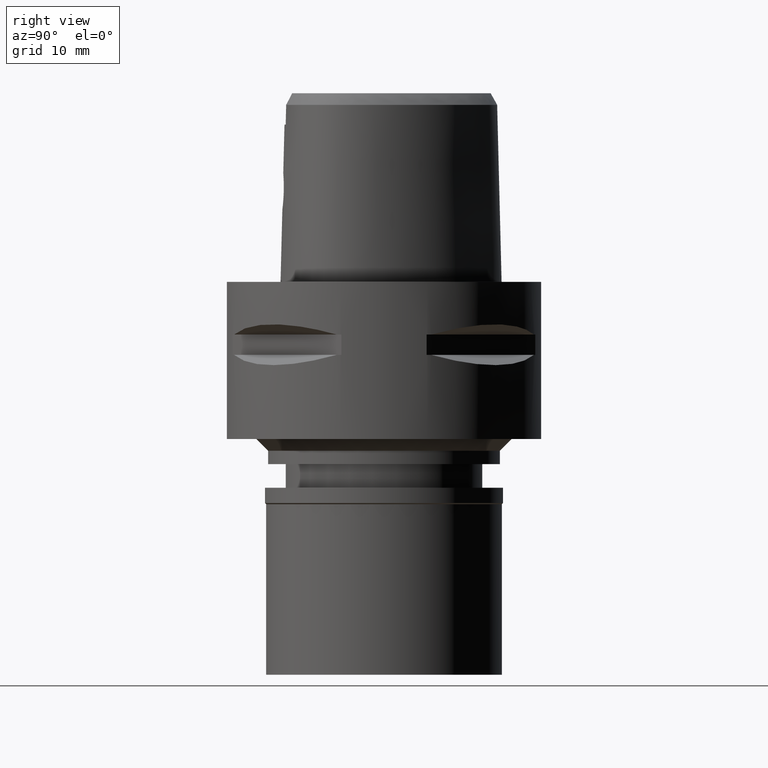
[diagram: clean part render]
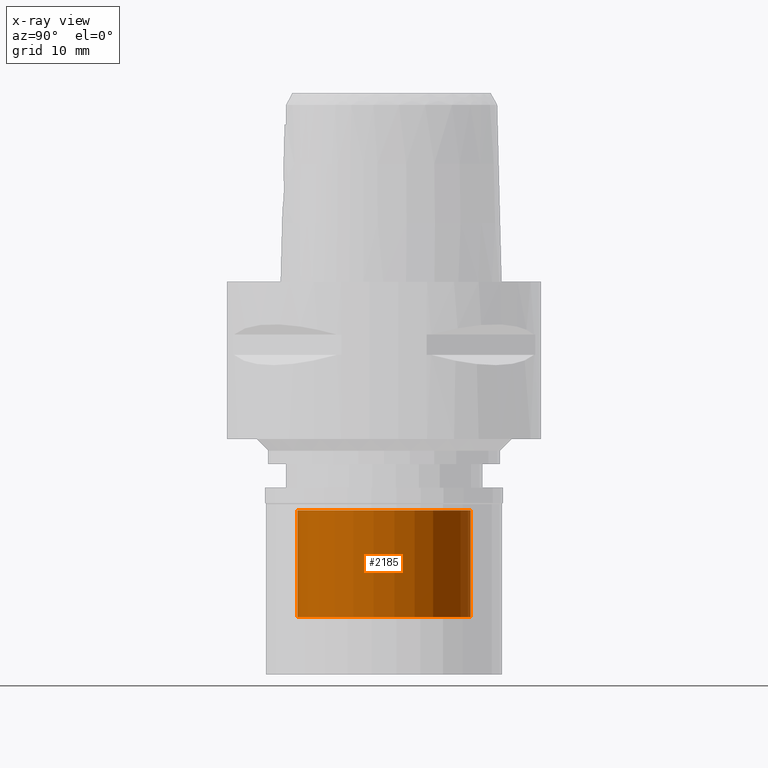
[diagram: x-ray — body ghosted, one internal face saturated and labeled with its STEP entity id]
A machine part, right view, then the same camera in x-ray: the body is ghosted and one INTERNAL B-rep face — a face not visible from any outside direction — is saturated and labeled: STEP entity #2185.
In plain terms, the highlighted cylindrical surface (partial cylindrical patch) has radius 11 mm, axis along (0, 0, -1).
Its self-contained STEP definition (entity closure, byte-faithful):
#47 = DIRECTION ( 'NONE',  ( 0.0000000000000000000, -1.000000000000000000, 0.0000000000000000000 ) ) ;
#89 = DIRECTION ( 'NONE',  ( 0.0000000000000000000, 0.0000000000000000000, 1.000000000000000000 ) ) ;
#99 = EDGE_CURVE ( 'NONE', #2465, #2778, #1657, .T. ) ;
#131 = CARTESIAN_POINT ( 'NONE',  ( 0.0000000000000000000, -11.00000000000000000, -2.899999999999999911 ) ) ;
#450 = LINE ( 'NONE', #2227, #1572 ) ;
#603 = CIRCLE ( 'NONE', #4447, 11.00000000000000000 ) ;
#669 = ORIENTED_EDGE ( 'NONE', *, *, #99, .T. ) ;
#761 = FACE_OUTER_BOUND ( 'NONE', #3895, .T. ) ;
#1188 = AXIS2_PLACEMENT_3D ( 'NONE', #3958, #2504, #3287 ) ;
#1357 = ORIENTED_EDGE ( 'NONE', *, *, #2343, .T. ) ;
#1495 = EDGE_CURVE ( 'NONE', #2298, #2460, #603, .T. ) ;
#1500 = CARTESIAN_POINT ( 'NONE',  ( 0.0000000000000000000, -11.00000000000000000, -16.50000000000000000 ) ) ;
#1572 = VECTOR ( 'NONE', #2598, 1000.000000000000000 ) ;
#1657 = CIRCLE ( 'NONE', #2610, 11.00000000000000000 ) ;
#1762 = ORIENTED_EDGE ( 'NONE', *, *, #3956, .F. ) ;
#1845 = CYLINDRICAL_SURFACE ( 'NONE', #1188, 11.00000000000000000 ) ;
#2185 = ADVANCED_FACE ( 'NONE', ( #761 ), #1845, .F. ) ;
#2227 = CARTESIAN_POINT ( 'NONE',  ( 0.0000000000000000000, -11.00000000000000000, -16.50000000000000000 ) ) ;
#2247 = CARTESIAN_POINT ( 'NONE',  ( 0.0000000000000000000, 0.0000000000000000000, -2.899999999999999911 ) ) ;
#2297 = ORIENTED_EDGE ( 'NONE', *, *, #1495, .T. ) ;
#2298 = VERTEX_POINT ( 'NONE', #131 ) ;
#2343 = EDGE_CURVE ( 'NONE', #2778, #2298, #450, .T. ) ;
#2460 = VERTEX_POINT ( 'NONE', #3216 ) ;
#2465 = VERTEX_POINT ( 'NONE', #4662 ) ;
#2504 = DIRECTION ( 'NONE',  ( 0.0000000000000000000, 0.0000000000000000000, -1.000000000000000000 ) ) ;
#2598 = DIRECTION ( 'NONE',  ( 0.0000000000000000000, 0.0000000000000000000, 1.000000000000000000 ) ) ;
#2610 = AXIS2_PLACEMENT_3D ( 'NONE', #3168, #4244, #3215 ) ;
#2778 = VERTEX_POINT ( 'NONE', #1500 ) ;
#3168 = CARTESIAN_POINT ( 'NONE',  ( 0.0000000000000000000, 0.0000000000000000000, -16.50000000000000000 ) ) ;
#3215 = DIRECTION ( 'NONE',  ( 0.0000000000000000000, 1.000000000000000000, 0.0000000000000000000 ) ) ;
#3216 = CARTESIAN_POINT ( 'NONE',  ( 0.0000000000000000000, 11.00000000000000000, -2.899999999999999911 ) ) ;
#3269 = CARTESIAN_POINT ( 'NONE',  ( 0.0000000000000000000, 11.00000000000000000, -16.50000000000000000 ) ) ;
#3287 = DIRECTION ( 'NONE',  ( 0.0000000000000000000, -1.000000000000000000, 0.0000000000000000000 ) ) ;
#3335 = LINE ( 'NONE', #3269, #3644 ) ;
#3606 = DIRECTION ( 'NONE',  ( 0.0000000000000000000, 0.0000000000000000000, 1.000000000000000000 ) ) ;
#3644 = VECTOR ( 'NONE', #3606, 1000.000000000000000 ) ;
#3895 = EDGE_LOOP ( 'NONE', ( #669, #1357, #2297, #1762 ) ) ;
#3956 = EDGE_CURVE ( 'NONE', #2465, #2460, #3335, .T. ) ;
#3958 = CARTESIAN_POINT ( 'NONE',  ( 0.0000000000000000000, 0.0000000000000000000, 0.0000000000000000000 ) ) ;
#4244 = DIRECTION ( 'NONE',  ( 0.0000000000000000000, 0.0000000000000000000, -1.000000000000000000 ) ) ;
#4447 = AXIS2_PLACEMENT_3D ( 'NONE', #2247, #89, #47 ) ;
#4662 = CARTESIAN_POINT ( 'NONE',  ( 0.0000000000000000000, 11.00000000000000000, -16.50000000000000000 ) ) ;